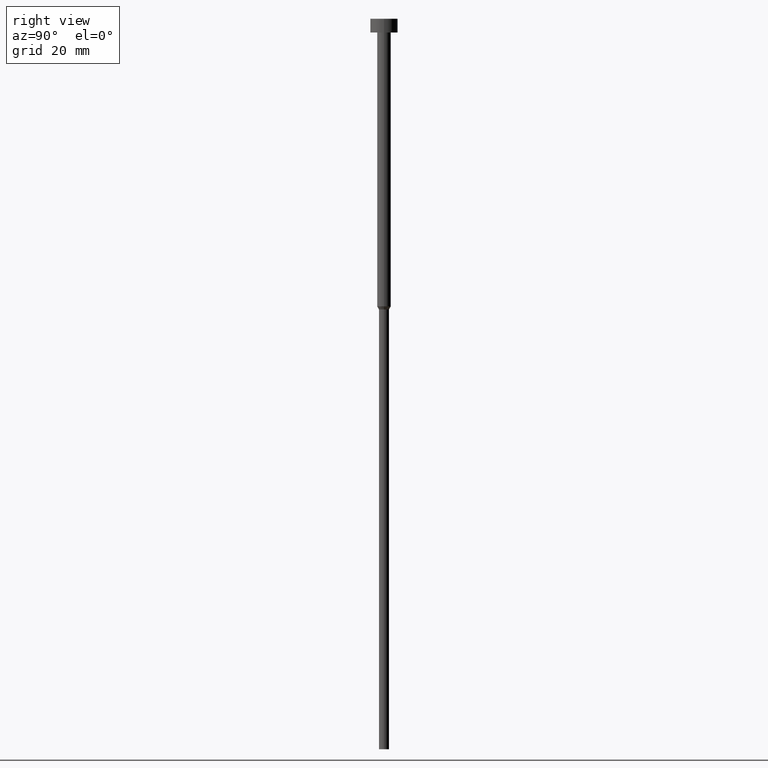
[diagram: clean part render]
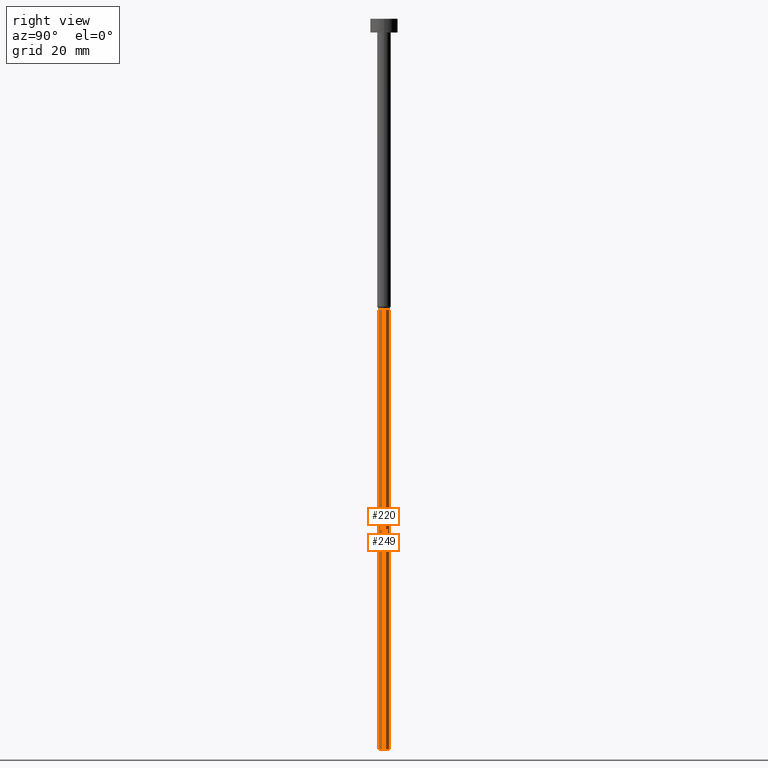
[diagram: same view with one multi-face feature highlighted, each face labeled with its STEP entity id]
A machine part, right view. The highlighted faces form ONE feature: a constant-radius fillet chain: 2 tangent blend faces with common blend radius 1.1 mm. The faces share edges in the B-rep.
Their STEP definitions:
[1] entity #220 (Cylinder):
#17 = LINE ( 'NONE', #243, #335 ) ;
#28 = ORIENTED_EDGE ( 'NONE', *, *, #233, .F. ) ;
#37 = FACE_OUTER_BOUND ( 'NONE', #252, .T. ) ;
#45 = CIRCLE ( 'NONE', #313, 1.100000000000000089 ) ;
#47 = CIRCLE ( 'NONE', #153, 1.100000000000000089 ) ;
#73 = VERTEX_POINT ( 'NONE', #79 ) ;
#79 = CARTESIAN_POINT ( 'NONE',  ( 1.100000000000000089, 0.000000000000000000, -63.69282032302754715 ) ) ;
#84 = DIRECTION ( 'NONE',  ( 1.000000000000000000, 0.000000000000000000, 0.000000000000000000 ) ) ;
#107 = ORIENTED_EDGE ( 'NONE', *, *, #341, .T. ) ;
#121 = DIRECTION ( 'NONE',  ( 1.000000000000000000, 0.000000000000000000, 0.000000000000000000 ) ) ;
#139 = DIRECTION ( 'NONE',  ( -0.000000000000000000, -0.000000000000000000, 1.000000000000000000 ) ) ;
#144 = DIRECTION ( 'NONE',  ( -0.000000000000000000, -0.000000000000000000, 1.000000000000000000 ) ) ;
#150 = EDGE_CURVE ( 'NONE', #189, #73, #45, .T. ) ;
#153 = AXIS2_PLACEMENT_3D ( 'NONE', #282, #315, #311 ) ;
#174 = EDGE_CURVE ( 'NONE', #240, #195, #47, .T. ) ;
#176 = CARTESIAN_POINT ( 'NONE',  ( -1.100000000000000089, 1.347111479062088503E-16, -63.69282032302754715 ) ) ;
#183 = LINE ( 'NONE', #340, #230 ) ;
#189 = VERTEX_POINT ( 'NONE', #176 ) ;
#195 = VERTEX_POINT ( 'NONE', #338 ) ;
#207 = CARTESIAN_POINT ( 'NONE',  ( -1.100000000000000089, 1.347111479062088503E-16, -160.0000000000000000 ) ) ;
#208 = CARTESIAN_POINT ( 'NONE',  ( 0.000000000000000000, 0.000000000000000000, -63.69282032302754715 ) ) ;
#220 = ADVANCED_FACE ( 'NONE', ( #37 ), #260, .T. ) ;
#221 = AXIS2_PLACEMENT_3D ( 'NONE', #235, #333, #84 ) ;
#223 = ORIENTED_EDGE ( 'NONE', *, *, #174, .T. ) ;
#230 = VECTOR ( 'NONE', #139, 1000.000000000000000 ) ;
#233 = EDGE_CURVE ( 'NONE', #240, #189, #183, .T. ) ;
#235 = CARTESIAN_POINT ( 'NONE',  ( 0.000000000000000000, 0.000000000000000000, 0.000000000000000000 ) ) ;
#240 = VERTEX_POINT ( 'NONE', #207 ) ;
#243 = CARTESIAN_POINT ( 'NONE',  ( 1.100000000000000089, 0.000000000000000000, 0.000000000000000000 ) ) ;
#252 = EDGE_LOOP ( 'NONE', ( #28, #223, #107, #289 ) ) ;
#260 = CYLINDRICAL_SURFACE ( 'NONE', #221, 1.100000000000000089 ) ;
#282 = CARTESIAN_POINT ( 'NONE',  ( 0.000000000000000000, 0.000000000000000000, -160.0000000000000000 ) ) ;
#289 = ORIENTED_EDGE ( 'NONE', *, *, #150, .F. ) ;
#311 = DIRECTION ( 'NONE',  ( 1.000000000000000000, 0.000000000000000000, 0.000000000000000000 ) ) ;
#313 = AXIS2_PLACEMENT_3D ( 'NONE', #208, #144, #121 ) ;
#315 = DIRECTION ( 'NONE',  ( -0.000000000000000000, -0.000000000000000000, 1.000000000000000000 ) ) ;
#333 = DIRECTION ( 'NONE',  ( -0.000000000000000000, -0.000000000000000000, 1.000000000000000000 ) ) ;
#335 = VECTOR ( 'NONE', #347, 1000.000000000000000 ) ;
#338 = CARTESIAN_POINT ( 'NONE',  ( 1.100000000000000089, 0.000000000000000000, -160.0000000000000000 ) ) ;
#340 = CARTESIAN_POINT ( 'NONE',  ( -1.100000000000000089, 1.347111479062088503E-16, 0.000000000000000000 ) ) ;
#341 = EDGE_CURVE ( 'NONE', #195, #73, #17, .T. ) ;
#347 = DIRECTION ( 'NONE',  ( -0.000000000000000000, -0.000000000000000000, 1.000000000000000000 ) ) ;
[2] entity #249 (Cylinder):
#6 = EDGE_CURVE ( 'NONE', #73, #189, #267, .T. ) ;
#17 = LINE ( 'NONE', #243, #335 ) ;
#39 = DIRECTION ( 'NONE',  ( 1.000000000000000000, 0.000000000000000000, 0.000000000000000000 ) ) ;
#49 = ORIENTED_EDGE ( 'NONE', *, *, #292, .T. ) ;
#56 = DIRECTION ( 'NONE',  ( -0.000000000000000000, -0.000000000000000000, 1.000000000000000000 ) ) ;
#68 = CARTESIAN_POINT ( 'NONE',  ( 0.000000000000000000, 0.000000000000000000, 0.000000000000000000 ) ) ;
#73 = VERTEX_POINT ( 'NONE', #79 ) ;
#78 = ORIENTED_EDGE ( 'NONE', *, *, #6, .F. ) ;
#79 = CARTESIAN_POINT ( 'NONE',  ( 1.100000000000000089, 0.000000000000000000, -63.69282032302754715 ) ) ;
#104 = DIRECTION ( 'NONE',  ( 1.000000000000000000, 0.000000000000000000, 0.000000000000000000 ) ) ;
#139 = DIRECTION ( 'NONE',  ( -0.000000000000000000, -0.000000000000000000, 1.000000000000000000 ) ) ;
#155 = AXIS2_PLACEMENT_3D ( 'NONE', #219, #56, #104 ) ;
#157 = AXIS2_PLACEMENT_3D ( 'NONE', #68, #286, #39 ) ;
#159 = EDGE_LOOP ( 'NONE', ( #49, #272, #78, #343 ) ) ;
#171 = CIRCLE ( 'NONE', #342, 1.100000000000000089 ) ;
#173 = CYLINDRICAL_SURFACE ( 'NONE', #157, 1.100000000000000089 ) ;
#176 = CARTESIAN_POINT ( 'NONE',  ( -1.100000000000000089, 1.347111479062088503E-16, -63.69282032302754715 ) ) ;
#183 = LINE ( 'NONE', #340, #230 ) ;
#189 = VERTEX_POINT ( 'NONE', #176 ) ;
#195 = VERTEX_POINT ( 'NONE', #338 ) ;
#207 = CARTESIAN_POINT ( 'NONE',  ( -1.100000000000000089, 1.347111479062088503E-16, -160.0000000000000000 ) ) ;
#219 = CARTESIAN_POINT ( 'NONE',  ( 0.000000000000000000, 0.000000000000000000, -63.69282032302754715 ) ) ;
#230 = VECTOR ( 'NONE', #139, 1000.000000000000000 ) ;
#233 = EDGE_CURVE ( 'NONE', #240, #189, #183, .T. ) ;
#240 = VERTEX_POINT ( 'NONE', #207 ) ;
#243 = CARTESIAN_POINT ( 'NONE',  ( 1.100000000000000089, 0.000000000000000000, 0.000000000000000000 ) ) ;
#249 = ADVANCED_FACE ( 'NONE', ( #254 ), #173, .T. ) ;
#254 = FACE_OUTER_BOUND ( 'NONE', #159, .T. ) ;
#263 = DIRECTION ( 'NONE',  ( -0.000000000000000000, -0.000000000000000000, 1.000000000000000000 ) ) ;
#267 = CIRCLE ( 'NONE', #155, 1.100000000000000089 ) ;
#268 = CARTESIAN_POINT ( 'NONE',  ( 0.000000000000000000, 0.000000000000000000, -160.0000000000000000 ) ) ;
#272 = ORIENTED_EDGE ( 'NONE', *, *, #233, .T. ) ;
#286 = DIRECTION ( 'NONE',  ( -0.000000000000000000, -0.000000000000000000, 1.000000000000000000 ) ) ;
#292 = EDGE_CURVE ( 'NONE', #195, #240, #171, .T. ) ;
#295 = DIRECTION ( 'NONE',  ( 1.000000000000000000, 0.000000000000000000, 0.000000000000000000 ) ) ;
#335 = VECTOR ( 'NONE', #347, 1000.000000000000000 ) ;
#338 = CARTESIAN_POINT ( 'NONE',  ( 1.100000000000000089, 0.000000000000000000, -160.0000000000000000 ) ) ;
#340 = CARTESIAN_POINT ( 'NONE',  ( -1.100000000000000089, 1.347111479062088503E-16, 0.000000000000000000 ) ) ;
#341 = EDGE_CURVE ( 'NONE', #195, #73, #17, .T. ) ;
#342 = AXIS2_PLACEMENT_3D ( 'NONE', #268, #263, #295 ) ;
#343 = ORIENTED_EDGE ( 'NONE', *, *, #341, .F. ) ;
#347 = DIRECTION ( 'NONE',  ( -0.000000000000000000, -0.000000000000000000, 1.000000000000000000 ) ) ;